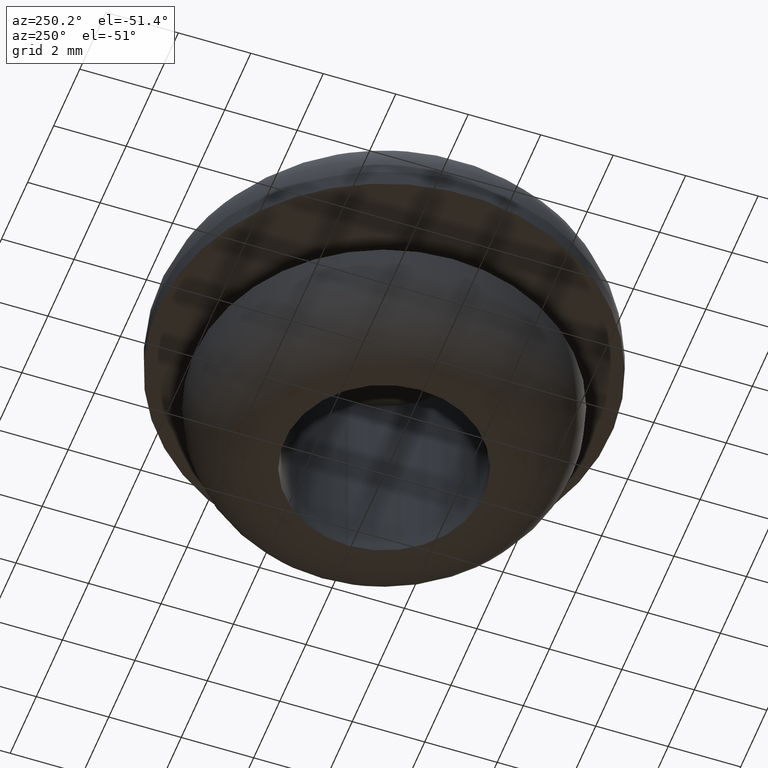
[diagram: clean part render]
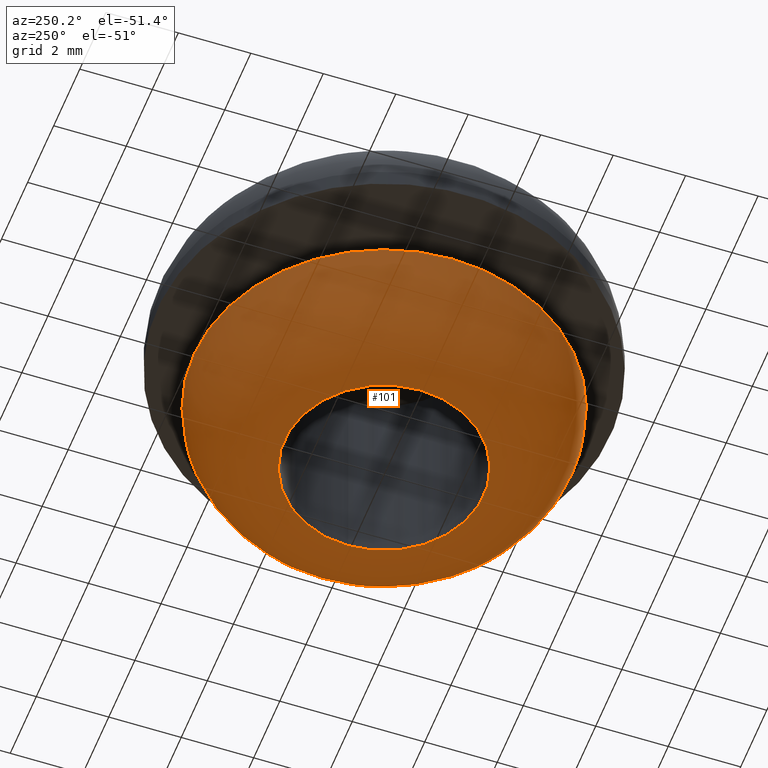
[diagram: same view with one face highlighted and labeled with its STEP entity id]
A machine part, auxiliary view. The second image highlights one B-rep face of the part: STEP entity #101.
In plain terms, the highlighted toroidal blend (fillet) surface has major radius 2.75 mm and minor (blend) radius 2.5 mm.
Its self-contained STEP definition (entity closure, byte-faithful):
#16=TOROIDAL_SURFACE('',#118,2.75,2.5);
#20=FACE_BOUND('',#45,.T.);
#32=FACE_OUTER_BOUND('',#44,.T.);
#44=EDGE_LOOP('',(#84));
#45=EDGE_LOOP('',(#85));
#58=CIRCLE('',#119,2.75);
#59=CIRCLE('',#120,5.25);
#66=VERTEX_POINT('',#179);
#67=VERTEX_POINT('',#181);
#74=EDGE_CURVE('',#66,#66,#58,.T.);
#75=EDGE_CURVE('',#67,#67,#59,.T.);
#84=ORIENTED_EDGE('',*,*,#74,.T.);
#85=ORIENTED_EDGE('',*,*,#75,.F.);
#101=ADVANCED_FACE('',(#32,#20),#16,.T.);
#118=AXIS2_PLACEMENT_3D('',#178,#148,#149);
#119=AXIS2_PLACEMENT_3D('',#180,#150,#151);
#120=AXIS2_PLACEMENT_3D('',#182,#152,#153);
#148=DIRECTION('center_axis',(0.,0.,1.));
#149=DIRECTION('ref_axis',(1.,0.,0.));
#150=DIRECTION('center_axis',(0.,0.,1.));
#151=DIRECTION('ref_axis',(1.,0.,0.));
#152=DIRECTION('center_axis',(0.,0.,1.));
#153=DIRECTION('ref_axis',(1.,0.,0.));
#178=CARTESIAN_POINT('Origin',(0.,0.,-1.5));
#179=CARTESIAN_POINT('',(2.75,0.,-4.));
#180=CARTESIAN_POINT('Origin',(0.,0.,-4.));
#181=CARTESIAN_POINT('',(5.25,0.,-1.5));
#182=CARTESIAN_POINT('Origin',(0.,0.,-1.5));